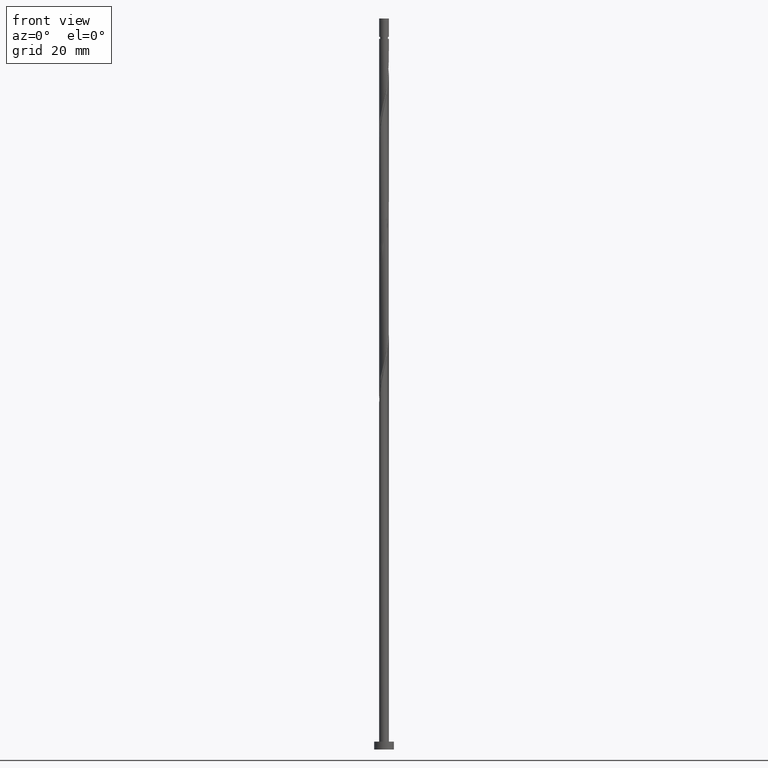
[diagram: clean part render]
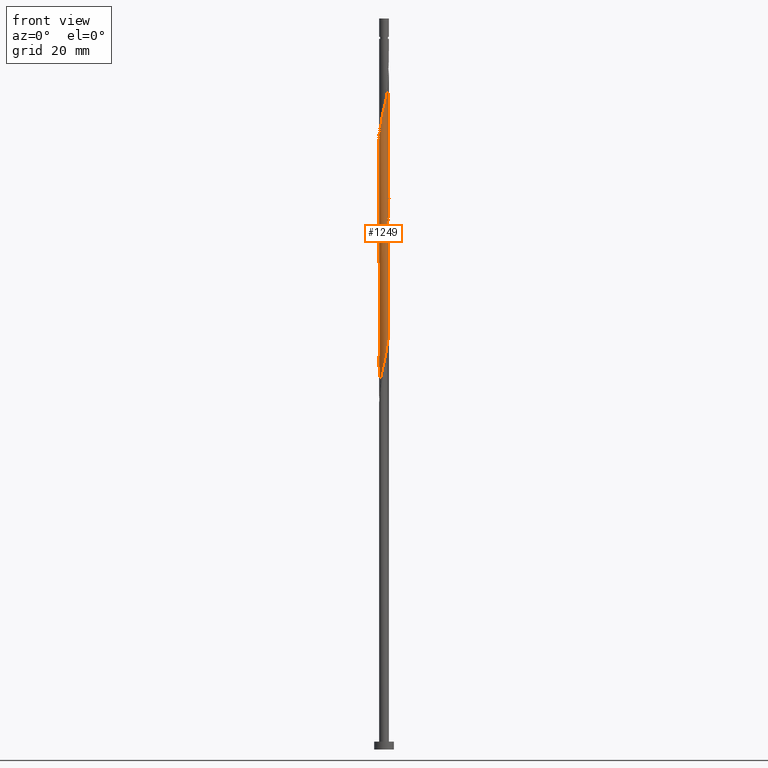
[diagram: same view with one face highlighted and labeled with its STEP entity id]
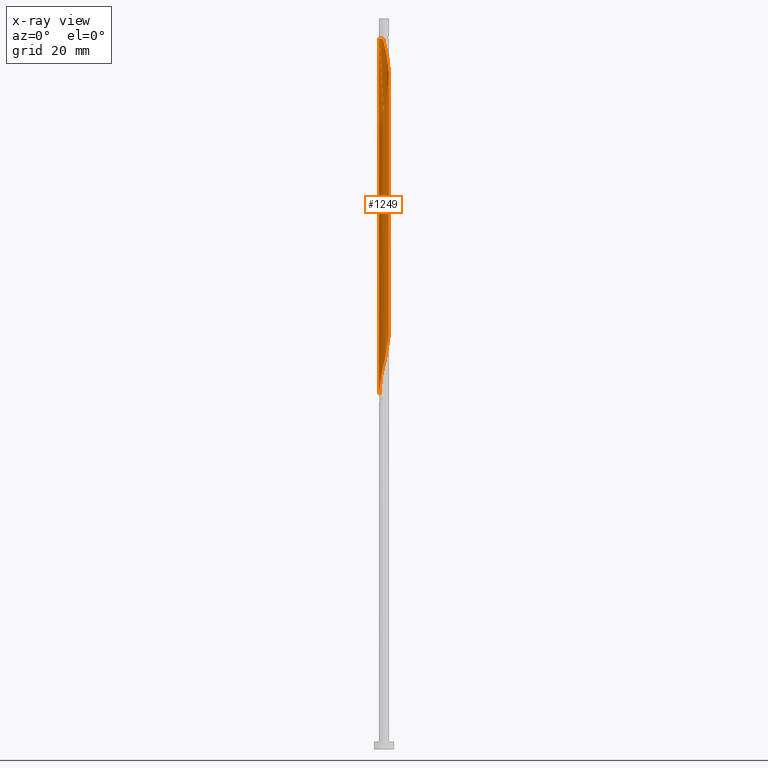
[diagram: x-ray of the same camera — body ghosted, the highlighted face saturated]
A machine part, front view. The second image highlights one B-rep face of the part: STEP entity #1249.
The next image is the same camera in x-ray: the body ghosted, the highlighted face saturated — about 0% of this face is hidden behind the body in this view.
In plain terms, the highlighted cylindrical surface (bore or boss wall) has radius 1.25 mm, axis along (-0, -0, -1).
Its self-contained STEP definition (entity closure, byte-faithful):
#1 = EDGE_LOOP ( 'NONE', ( #544, #595, #1333, #143, #1092, #1574, #1375, #1614 ) ) ;
#4 = CARTESIAN_POINT ( 'NONE',  ( 1.247639561794343654, 0.07678231466697274521, 140.5455219272187435 ) ) ;
#17 = CARTESIAN_POINT ( 'NONE',  ( 1.257748145290791930, -0.08747254973209654672, 106.5177441494410004 ) ) ;
#34 = CARTESIAN_POINT ( 'NONE',  ( 0.8279210992451773166, 0.9365076899976088054, 111.3788552605521005 ) ) ;
#76 = CARTESIAN_POINT ( 'NONE',  ( 0.5573243458342033163, 1.118878712613872395, 112.7677441494410004 ) ) ;
#83 = CARTESIAN_POINT ( 'NONE',  ( -0.9512146756431651973, -0.8275098094766791812, 127.3510774827743290 ) ) ;
#89 = CARTESIAN_POINT ( 'NONE',  ( -0.07678231466697330032, 1.247639561794343654, 115.5455219272187719 ) ) ;
#92 = CARTESIAN_POINT ( 'NONE',  ( 1.042096397946900677, -0.6903152159601428917, 168.3232997049965434 ) ) ;
#94 = CARTESIAN_POINT ( 'NONE',  ( 1.250000000000000000, 1.530808498934191571E-16, 186.0000000000000000 ) ) ;
#99 = CARTESIAN_POINT ( 'NONE',  ( -0.2410371790660428004, 1.237530978297895601, 116.2399663716631864 ) ) ;
#100 = CARTESIAN_POINT ( 'NONE',  ( 0.9512146756431651973, 0.8275098094766790702, 144.0177441494410004 ) ) ;
#103 = CARTESIAN_POINT ( 'NONE',  ( -1.118878712613874837, -0.5573243458342027612, 157.2121885938854575 ) ) ;
#105 = CARTESIAN_POINT ( 'NONE',  ( -1.192251854709207803, 0.4100211688212159755, 121.7955219272187435 ) ) ;
#106 = CARTESIAN_POINT ( 'NONE',  ( -0.3970789007548229388, 1.185254549274265434, 150.2677441494410004 ) ) ;
#108 = CARTESIAN_POINT ( 'NONE',  ( -1.045505570518540539, -0.7046275228471895469, 157.9066330383299146 ) ) ;
#113 = CARTESIAN_POINT ( 'NONE',  ( 0.08747254973209614426, 1.257748145290791930, 148.1844108161076292 ) ) ;
#116 = EDGE_CURVE ( 'NONE', #152, #1071, #195, .T. ) ;
#122 = DIRECTION ( 'NONE',  ( -0.000000000000000000, -0.000000000000000000, -1.000000000000000000 ) ) ;
#142 = CARTESIAN_POINT ( 'NONE',  ( 1.045505570518538541, -0.7046275228471894359, 103.7399663716632290 ) ) ;
#143 = ORIENTED_EDGE ( 'NONE', *, *, #401, .T. ) ;
#152 = VERTEX_POINT ( 'NONE', #313 ) ;
#158 = CARTESIAN_POINT ( 'NONE',  ( -0.9512146756431651973, -0.8275098094766791812, 94.01774414944098623 ) ) ;
#163 = VECTOR ( 'NONE', #122, 1000.000000000000000 ) ;
#189 = CARTESIAN_POINT ( 'NONE',  ( -1.247639561794343432, -0.07678231466697317542, 123.8788552605521147 ) ) ;
#195 = LINE ( 'NONE', #94, #505 ) ;
#210 = CARTESIAN_POINT ( 'NONE',  ( 0.8279210992451775386, -0.9365076899976109148, 166.9344108161076861 ) ) ;
#216 = CARTESIAN_POINT ( 'NONE',  ( -1.132978120250635490, -0.5531206224436024943, 125.9621885938854149 ) ) ;
#219 = CARTESIAN_POINT ( 'NONE',  ( 0.9365076899976112479, 0.8279210992451770945, 175.2677441494410004 ) ) ;
#221 = DIRECTION ( 'NONE',  ( -0.000000000000000000, -0.000000000000000000, -1.000000000000000000 ) ) ;
#226 = CARTESIAN_POINT ( 'NONE',  ( -1.224999999999999201, 0.2487468592766560738, 122.4899663716632290 ) ) ;
#229 = CARTESIAN_POINT ( 'NONE',  ( 0.4100211688212160310, -1.192251854709209802, 164.8510774827744001 ) ) ;
#231 = CARTESIAN_POINT ( 'NONE',  ( -0.4100211688212163086, -1.192251854709207803, 96.79552192721878612 ) ) ;
#232 = CARTESIAN_POINT ( 'NONE',  ( 0.4100211688212171413, 1.192251854709207137, 146.7955219272187435 ) ) ;
#234 = CARTESIAN_POINT ( 'NONE',  ( -1.225000000000001199, -0.2487468592766561293, 155.8232997049966002 ) ) ;
#238 = CARTESIAN_POINT ( 'NONE',  ( 1.250000000000000000, 1.039288018831575252E-15, 140.2201996935399677 ) ) ;
#264 = CARTESIAN_POINT ( 'NONE',  ( 0.9512146756431651973, 0.8275098094766790702, 110.6844108161076434 ) ) ;
#283 = EDGE_CURVE ( 'NONE', #681, #574, #617, .T. ) ;
#313 = CARTESIAN_POINT ( 'NONE',  ( 1.250000000000000000, 1.530808498934191571E-16, 180.8232997049965434 ) ) ;
#328 = CARTESIAN_POINT ( 'NONE',  ( 0.2410371790660420510, -1.237530978297895601, 132.9066330383298578 ) ) ;
#331 = CARTESIAN_POINT ( 'NONE',  ( 0.5573243458342024281, -1.118878712613875059, 165.5455219272188003 ) ) ;
#337 = CARTESIAN_POINT ( 'NONE',  ( 1.224999999999999201, -0.2487468592766562125, 139.1566330383298578 ) ) ;
#338 = CARTESIAN_POINT ( 'NONE',  ( 0.5573243458342033163, 1.118878712613872395, 146.1010774827743148 ) ) ;
#340 = CARTESIAN_POINT ( 'NONE',  ( -1.192251854709209802, -0.4100211688212160865, 156.5177441494409720 ) ) ;
#343 = CARTESIAN_POINT ( 'NONE',  ( -1.250000000000000000, 0.000000000000000000, 186.0000000000000000 ) ) ;
#345 = CARTESIAN_POINT ( 'NONE',  ( -1.185254549274265434, -0.3970789007548227167, 125.2677441494409720 ) ) ;
#350 = CARTESIAN_POINT ( 'NONE',  ( -0.07678231466697392482, -1.247639561794345431, 162.7677441494410289 ) ) ;
#352 = DIRECTION ( 'NONE',  ( -0.000000000000000000, -0.000000000000000000, -1.000000000000000000 ) ) ;
#358 = CARTESIAN_POINT ( 'NONE',  ( 0.07678231466697466034, 1.247639561794345431, 179.4344108161076576 ) ) ;
#359 = LINE ( 'NONE', #389, #163 ) ;
#362 =( BOUNDED_CURVE ( )  B_SPLINE_CURVE ( 2, ( #1379, #1618, #234, #340, #103, #108, #1631, #1353, #1267, #593, #364, #751, #350, #1623, #843, #229, #331, #1230, #210, #738, #92, #1612, #973, #487, #1097, #1498, #1250, #966, #1360, #1115, #219, #727, #601, #1108, #607, #982, #358, #388, #776 ),
 .UNSPECIFIED., .F., .T. ) 
 B_SPLINE_CURVE_WITH_KNOTS ( ( 3, 2, 2, 2, 2, 2, 2, 2, 2, 2, 2, 2, 2, 2, 2, 2, 2, 2, 2, 3 ),
 ( 0.5545317669814464612, 0.5625000000000000000, 0.5729166666666667407, 0.5833333333333332593, 0.5937500000000000000, 0.6041666666666667407, 0.6145833333333332593, 0.6250000000000000000, 0.6354166666666667407, 0.6458333333333332593, 0.6562500000000000000, 0.6666666666666667407, 0.6770833333333332593, 0.6875000000000001110, 0.6979166666666668517, 0.7083333333333333703, 0.7187500000000001110, 0.7291666666666668517, 0.7395833333333333703, 0.7500000000000001110 ),
 .UNSPECIFIED. ) 
 CURVE ( )  GEOMETRIC_REPRESENTATION_ITEM ( )  RATIONAL_B_SPLINE_CURVE ( ( 0.9062941362546669266, 0.9031415850403715639, 0.9090909090909468082, 0.9013135103398650649, 0.9090909090909468082, 0.9013135103398650649, 0.9090909090909468082, 0.9013135103398650649, 0.9090909090909468082, 0.9013135103398650649, 0.9090909090909468082, 0.9013135103398650649, 0.9090909090909468082, 0.9013135103398650649, 0.9090909090909468082, 0.9013135103398650649, 0.9090909090909468082, 0.9013135103398650649, 0.9090909090909468082, 0.9013135103398650649, 0.9090909090909468082, 0.9013135103398650649, 0.9090909090909468082, 0.9013135103398650649, 0.9090909090909468082, 0.9013135103398650649, 0.9090909090909468082, 0.9013135103398650649, 0.9090909090909468082, 0.9013135103398650649, 0.9090909090909468082, 0.9013135103398650649, 0.9090909090909468082, 0.9013135103398650649, 0.9090909090909468082, 0.9013135103398650649, 0.9090909090909468082, 0.9013135103398650649, 0.9090909090909468082 ) ) 
 REPRESENTATION_ITEM ( '' )  );
#364 = CARTESIAN_POINT ( 'NONE',  ( -0.3970789007548240490, -1.185254549274266545, 161.3788552605520863 ) ) ;
#388 = CARTESIAN_POINT ( 'NONE',  ( -0.08747254973209654672, 1.257748145290793929, 180.1288552605520863 ) ) ;
#389 = CARTESIAN_POINT ( 'NONE',  ( -1.250000000000000000, 0.000000000000000000, 186.0000000000000000 ) ) ;
#397 = CARTESIAN_POINT ( 'NONE',  ( 1.132978120250635712, 0.5531206224436020502, 109.2955219272187861 ) ) ;
#401 = EDGE_CURVE ( 'NONE', #1382, #885, #359, .T. ) ;
#407 = CARTESIAN_POINT ( 'NONE',  ( -1.192251854709207803, 0.4100211688212159755, 155.1288552605520579 ) ) ;
#410 = CARTESIAN_POINT ( 'NONE',  ( -0.7046275228471889918, -1.045505570518538763, 95.40663303832988618 ) ) ;
#417 = CARTESIAN_POINT ( 'NONE',  ( 0.8275098094766790702, -0.9512146756431651973, 102.3510774827743290 ) ) ;
#445 = CARTESIAN_POINT ( 'NONE',  ( -0.8279210992451773166, -0.9365076899976088054, 128.0455219272187435 ) ) ;
#456 = CARTESIAN_POINT ( 'NONE',  ( -0.5531206224436029384, 1.132978120250635490, 117.6288552605521147 ) ) ;
#457 = CARTESIAN_POINT ( 'NONE',  ( -0.2487468592766901021, 1.225000000000342038, 180.8232997049964865 ) ) ;
#467 = CARTESIAN_POINT ( 'NONE',  ( -1.250000000000001998, 6.056282699665983059E-16, 154.7597330497865471 ) ) ;
#474 = CARTESIAN_POINT ( 'NONE',  ( 0.8275098094766790702, -0.9512146756431651973, 135.6844108161076292 ) ) ;
#484 = CARTESIAN_POINT ( 'NONE',  ( 0.2487468592766563236, 1.224999999999999201, 114.1566330383298720 ) ) ;
#487 = CARTESIAN_POINT ( 'NONE',  ( 1.237530978297897155, -0.2410371790660440217, 170.4066330383299714 ) ) ;
#492 = CARTESIAN_POINT ( 'NONE',  ( 1.185254549274265878, 0.3970789007548219396, 141.9344108161076576 ) ) ;
#505 = VECTOR ( 'NONE', #221, 1000.000000000000000 ) ;
#516 = CARTESIAN_POINT ( 'NONE',  ( -1.042096397946899788, -0.6903152159601412263, 93.32329970499654337 ) ) ;
#532 = CARTESIAN_POINT ( 'NONE',  ( 0.9365076899976088054, -0.8279210992451773166, 103.0455219272187719 ) ) ;
#544 = ORIENTED_EDGE ( 'NONE', *, *, #1136, .F. ) ;
#562 = FACE_OUTER_BOUND ( 'NONE', #1, .T. ) ;
#574 = VERTEX_POINT ( 'NONE', #457 ) ;
#578 = CARTESIAN_POINT ( 'NONE',  ( -1.237530978297895601, -0.2410371790660424951, 124.5732997049965434 ) ) ;
#588 = CARTESIAN_POINT ( 'NONE',  ( 0.08747254973209614426, 1.257748145290791930, 114.8510774827743148 ) ) ;
#593 = CARTESIAN_POINT ( 'NONE',  ( -0.5531206224436042707, -1.132978120250636378, 160.6844108161076861 ) ) ;
#595 = ORIENTED_EDGE ( 'NONE', *, *, #283, .T. ) ;
#598 = CARTESIAN_POINT ( 'NONE',  ( -0.08747254973209647733, -1.257748145290791930, 131.5177441494410004 ) ) ;
#600 = EDGE_CURVE ( 'NONE', #1126, #1071, #605, .T. ) ;
#601 = CARTESIAN_POINT ( 'NONE',  ( 0.6903152159601424476, 1.042096397946901121, 176.6566330383299430 ) ) ;
#604 = CARTESIAN_POINT ( 'NONE',  ( 1.132978120250635712, 0.5531206224436020502, 142.6288552605520863 ) ) ;
#605 =( BOUNDED_CURVE ( )  B_SPLINE_CURVE ( 2, ( #1035, #1421, #1553, #407, #1325, #809, #613, #1370, #1378, #735, #106, #723, #1247, #113, #1505, #232, #338, #1238, #977, #100, #1495, #604, #492, #860, #4, #742, #238 ),
 .UNSPECIFIED., .F., .T. ) 
 B_SPLINE_CURVE_WITH_KNOTS ( ( 3, 2, 2, 2, 2, 2, 2, 2, 2, 2, 2, 2, 2, 3 ),
 ( 0.4295317669814464057, 0.4375000000000000000, 0.4479166666666666852, 0.4583333333333333148, 0.4687500000000000000, 0.4791666666666666852, 0.4895833333333333148, 0.5000000000000000000, 0.5104166666666666297, 0.5208333333333333703, 0.5312500000000000000, 0.5416666666666666297, 0.5520833333333333703, 0.5545317669814462391 ),
 .UNSPECIFIED. ) 
 CURVE ( )  GEOMETRIC_REPRESENTATION_ITEM ( )  RATIONAL_B_SPLINE_CURVE ( ( 0.9062941362546627078, 0.9031415850403670120, 0.9090909090909423673, 0.9013135103398606240, 0.9090909090909423673, 0.9013135103398606240, 0.9090909090909423673, 0.9013135103398606240, 0.9090909090909423673, 0.9013135103398606240, 0.9090909090909423673, 0.9013135103398606240, 0.9090909090909423673, 0.9013135103398606240, 0.9090909090909423673, 0.9013135103398606240, 0.9090909090909423673, 0.9013135103398606240, 0.9090909090909423673, 0.9013135103398606240, 0.9090909090909423673, 0.9013135103398606240, 0.9090909090909423673, 0.9013135103398606240, 0.9090909090909423673, 0.9072628343904360904, 0.9062941362546625967 ) ) 
 REPRESENTATION_ITEM ( '' )  );
#607 = CARTESIAN_POINT ( 'NONE',  ( 0.3970789007548241600, 1.185254549274266545, 178.0455219272187719 ) ) ;
#608 = DIRECTION ( 'NONE',  ( -1.000000000000000000, 0.000000000000000000, 0.000000000000000000 ) ) ;
#610 = CARTESIAN_POINT ( 'NONE',  ( 1.250000000000000000, 1.039288018831575252E-15, 140.2201996935399677 ) ) ;
#613 = CARTESIAN_POINT ( 'NONE',  ( -0.9365076899976091385, 0.8279210992451768725, 153.0455219272187435 ) ) ;
#617 = CIRCLE ( 'NONE', #872, 1.249999999999989786 ) ;
#649 = CARTESIAN_POINT ( 'NONE',  ( 0.6903152159601406712, -1.042096397946900455, 101.6566330383298862 ) ) ;
#655 = DIRECTION ( 'NONE',  ( -1.000000000000000000, 0.000000000000000000, 0.000000000000000000 ) ) ;
#670 = CARTESIAN_POINT ( 'NONE',  ( 0.2410371790660420510, -1.237530978297895601, 99.57329970499652916 ) ) ;
#681 = VERTEX_POINT ( 'NONE', #1352 ) ;
#696 = CARTESIAN_POINT ( 'NONE',  ( 1.192251854709207137, -0.4100211688212169192, 138.4621885938854291 ) ) ;
#713 = CARTESIAN_POINT ( 'NONE',  ( -0.3970789007548229388, 1.185254549274265434, 116.9344108161076292 ) ) ;
#721 = CARTESIAN_POINT ( 'NONE',  ( -1.045505570518538763, 0.7046275228471889918, 120.4066330383298862 ) ) ;
#723 = CARTESIAN_POINT ( 'NONE',  ( -0.2410371790660428004, 1.237530978297895601, 149.5732997049965718 ) ) ;
#727 = CARTESIAN_POINT ( 'NONE',  ( 0.8275098094766817347, 0.9512146756431651973, 175.9621885938854859 ) ) ;
#735 = CARTESIAN_POINT ( 'NONE',  ( -0.5531206224436029384, 1.132978120250635490, 150.9621885938854291 ) ) ;
#738 = CARTESIAN_POINT ( 'NONE',  ( 0.9512146756431653083, -0.8275098094766812906, 167.6288552605521147 ) ) ;
#741 = CARTESIAN_POINT ( 'NONE',  ( 0.5531206224436024943, -1.132978120250635490, 100.9621885938854007 ) ) ;
#742 = CARTESIAN_POINT ( 'NONE',  ( 1.250000000000000000, 0.03842743957209150685, 140.3833633815681026 ) ) ;
#751 = CARTESIAN_POINT ( 'NONE',  ( -0.2410371790660434665, -1.237530978297897599, 162.0732997049966002 ) ) ;
#765 = CARTESIAN_POINT ( 'NONE',  ( -1.247639561794343432, -0.07678231466697317542, 90.54552192721875770 ) ) ;
#776 = CARTESIAN_POINT ( 'NONE',  ( -0.2487468592766901021, 1.225000000000342038, 180.8232997049965149 ) ) ;
#797 = CARTESIAN_POINT ( 'NONE',  ( -1.250000000000000000, -1.353317492147590715E-15, 90.22019969353995350 ) ) ;
#809 = CARTESIAN_POINT ( 'NONE',  ( -1.045505570518538763, 0.7046275228471889918, 153.7399663716632006 ) ) ;
#840 = CARTESIAN_POINT ( 'NONE',  ( 0.07678231466697284235, -1.247639561794343654, 132.2121885938854291 ) ) ;
#843 = CARTESIAN_POINT ( 'NONE',  ( 0.2487468592766560183, -1.225000000000001199, 164.1566330383298862 ) ) ;
#847 = CARTESIAN_POINT ( 'NONE',  ( 1.250000000000000000, 1.039288018831575252E-15, 140.2201996935399677 ) ) ;
#853 = CARTESIAN_POINT ( 'NONE',  ( -1.042096397946899788, -0.6903152159601412263, 126.6566330383298862 ) ) ;
#860 = CARTESIAN_POINT ( 'NONE',  ( 1.237530978297895601, 0.2410371790660420510, 141.2399663716632290 ) ) ;
#872 = AXIS2_PLACEMENT_3D ( 'NONE', #1016, #1258, #608 ) ;
#885 = VERTEX_POINT ( 'NONE', #797 ) ;
#900 = CARTESIAN_POINT ( 'NONE',  ( -1.237530978297895601, -0.2410371790660424951, 91.23996637166320056 ) ) ;
#912 = CARTESIAN_POINT ( 'NONE',  ( -1.250000000000000222, -0.03842743957209011907, 90.38336338156811678 ) ) ;
#937 = DIRECTION ( 'NONE',  ( -0.000000000000000000, -0.000000000000000000, -1.000000000000000000 ) ) ;
#966 = CARTESIAN_POINT ( 'NONE',  ( 1.192251854709209802, 0.4100211688212160310, 173.1844108161076861 ) ) ;
#970 = CARTESIAN_POINT ( 'NONE',  ( 0.5531206224436024943, -1.132978120250635490, 134.2955219272187435 ) ) ;
#973 = CARTESIAN_POINT ( 'NONE',  ( 1.185254549274266545, -0.3970789007548241600, 169.7121885938854859 ) ) ;
#976 = CARTESIAN_POINT ( 'NONE',  ( -0.4100211688212163086, -1.192251854709207803, 130.1288552605521431 ) ) ;
#977 = CARTESIAN_POINT ( 'NONE',  ( 0.8279210992451773166, 0.9365076899976088054, 144.7121885938853723 ) ) ;
#982 = CARTESIAN_POINT ( 'NONE',  ( 0.2410371790660441604, 1.237530978297897155, 178.7399663716632574 ) ) ;
#1016 = CARTESIAN_POINT ( 'NONE',  ( 0.000000000000000000, 0.000000000000000000, 180.8232997049965434 ) ) ;
#1018 = CARTESIAN_POINT ( 'NONE',  ( 1.118878712613873061, -0.5573243458342033163, 104.4344108161076718 ) ) ;
#1029 = CARTESIAN_POINT ( 'NONE',  ( -1.132978120250635490, -0.5531206224436024943, 92.62885526055210050 ) ) ;
#1035 = CARTESIAN_POINT ( 'NONE',  ( -1.249999999999999778, -2.990756888723956966E-17, 156.8868663602065965 ) ) ;
#1038 = CARTESIAN_POINT ( 'NONE',  ( -0.08747254973209647733, -1.257748145290791930, 98.18441081610764343 ) ) ;
#1043 = CARTESIAN_POINT ( 'NONE',  ( 0.07678231466697284235, -1.247639561794343654, 98.87885526055210050 ) ) ;
#1065 = CYLINDRICAL_SURFACE ( 'NONE', #1552, 1.250000000000000000 ) ;
#1071 = VERTEX_POINT ( 'NONE', #610 ) ;
#1074 = CARTESIAN_POINT ( 'NONE',  ( 1.118878712613873061, -0.5573243458342033163, 137.7677441494409720 ) ) ;
#1085 = CARTESIAN_POINT ( 'NONE',  ( -1.257748145290791930, 0.08747254973209639406, 123.1844108161076576 ) ) ;
#1092 = ORIENTED_EDGE ( 'NONE', *, *, #1483, .F. ) ;
#1094 = CARTESIAN_POINT ( 'NONE',  ( -0.8275098094766795143, 0.9512146756431648642, 119.0177441494409862 ) ) ;
#1097 = CARTESIAN_POINT ( 'NONE',  ( 1.247639561794345209, -0.07678231466697457708, 171.1010774827744001 ) ) ;
#1108 = CARTESIAN_POINT ( 'NONE',  ( 0.5531206224436043817, 1.132978120250635934, 177.3510774827743148 ) ) ;
#1113 = CARTESIAN_POINT ( 'NONE',  ( 0.9365076899976088054, -0.8279210992451773166, 136.3788552605520863 ) ) ;
#1115 = CARTESIAN_POINT ( 'NONE',  ( 1.045505570518540539, 0.7046275228471892138, 174.5732997049965149 ) ) ;
#1126 = VERTEX_POINT ( 'NONE', #1615 ) ;
#1136 = EDGE_CURVE ( 'NONE', #681, #1126, #1478, .T. ) ;
#1152 = CARTESIAN_POINT ( 'NONE',  ( 1.185254549274265878, 0.3970789007548219396, 108.6010774827743290 ) ) ;
#1160 = CARTESIAN_POINT ( 'NONE',  ( -0.5573243458342028722, -1.118878712613873283, 96.10107748277431483 ) ) ;
#1174 = CARTESIAN_POINT ( 'NONE',  ( 1.237530978297895601, 0.2410371790660420510, 107.9066330383298720 ) ) ;
#1209 = CARTESIAN_POINT ( 'NONE',  ( -0.6903152159601412263, 1.042096397946899788, 118.3232997049965434 ) ) ;
#1216 = CARTESIAN_POINT ( 'NONE',  ( 0.3970789007548225502, -1.185254549274265434, 133.6010774827743433 ) ) ;
#1228 = CARTESIAN_POINT ( 'NONE',  ( -1.118878712613873283, 0.5573243458342028722, 121.1010774827743006 ) ) ;
#1230 = CARTESIAN_POINT ( 'NONE',  ( 0.7046275228471892138, -1.045505570518540539, 166.2399663716632858 ) ) ;
#1238 = CARTESIAN_POINT ( 'NONE',  ( 0.7046275228471894359, 1.045505570518538541, 145.4066330383299146 ) ) ;
#1246 = CARTESIAN_POINT ( 'NONE',  ( 1.045505570518538541, -0.7046275228471894359, 137.0732997049965149 ) ) ;
#1247 = CARTESIAN_POINT ( 'NONE',  ( -0.07678231466697330032, 1.247639561794343654, 148.8788552605521147 ) ) ;
#1249 = ADVANCED_FACE ( 'NONE', ( #562 ), #1065, .T. ) ;
#1250 = CARTESIAN_POINT ( 'NONE',  ( 1.225000000000001199, 0.2487468592766559627, 172.4899663716632574 ) ) ;
#1258 = DIRECTION ( 'NONE',  ( -0.000000000000000000, -0.000000000000000000, -1.000000000000000000 ) ) ;
#1267 = CARTESIAN_POINT ( 'NONE',  ( -0.6903152159601423365, -1.042096397946901121, 159.9899663716632006 ) ) ;
#1285 = CARTESIAN_POINT ( 'NONE',  ( -0.2487468592766561570, -1.224999999999999201, 97.48996637166321477 ) ) ;
#1294 = CARTESIAN_POINT ( 'NONE',  ( 1.224999999999999201, -0.2487468592766562125, 105.8232997049965434 ) ) ;
#1301 = CARTESIAN_POINT ( 'NONE',  ( -0.8279210992451773166, -0.9365076899976088054, 94.71218859388542910 ) ) ;
#1325 = CARTESIAN_POINT ( 'NONE',  ( -1.118878712613873283, 0.5573243458342028722, 154.4344108161076292 ) ) ;
#1333 = ORIENTED_EDGE ( 'NONE', *, *, #1586, .F. ) ;
#1341 = CARTESIAN_POINT ( 'NONE',  ( -0.5573243458342028722, -1.118878712613873283, 129.4344108161076576 ) ) ;
#1351 = CARTESIAN_POINT ( 'NONE',  ( 0.6903152159601406712, -1.042096397946900455, 134.9899663716632290 ) ) ;
#1352 = CARTESIAN_POINT ( 'NONE',  ( -1.249999999999989786, 0.000000000000000000, 180.8232997049965434 ) ) ;
#1353 = CARTESIAN_POINT ( 'NONE',  ( -0.8275098094766812906, -0.9512146756431653083, 159.2955219272188572 ) ) ;
#1360 = CARTESIAN_POINT ( 'NONE',  ( 1.118878712613875059, 0.5573243458342024281, 173.8788552605521147 ) ) ;
#1370 = CARTESIAN_POINT ( 'NONE',  ( -0.8275098094766795143, 0.9512146756431648642, 152.3510774827742864 ) ) ;
#1375 = ORIENTED_EDGE ( 'NONE', *, *, #116, .T. ) ;
#1377 = CARTESIAN_POINT ( 'NONE',  ( 0.3970789007548225502, -1.185254549274265434, 100.2677441494409862 ) ) ;
#1378 = CARTESIAN_POINT ( 'NONE',  ( -0.6903152159601412263, 1.042096397946899788, 151.6566330383298862 ) ) ;
#1379 = CARTESIAN_POINT ( 'NONE',  ( -1.250000000000002220, 6.056282699665982073E-16, 154.7597330497865471 ) ) ;
#1382 = VERTEX_POINT ( 'NONE', #467 ) ;
#1405 = CARTESIAN_POINT ( 'NONE',  ( 1.247639561794343654, 0.07678231466697274521, 107.2121885938854291 ) ) ;
#1413 = CARTESIAN_POINT ( 'NONE',  ( -1.250000000000000000, -1.353317492147590518E-15, 90.22019969353995350 ) ) ;
#1420 = VECTOR ( 'NONE', #352, 1000.000000000000000 ) ;
#1421 = CARTESIAN_POINT ( 'NONE',  ( -1.249999999999999334, 0.1256297269074047596, 156.3534399910173249 ) ) ;
#1474 = CARTESIAN_POINT ( 'NONE',  ( 1.250000000000000222, -0.1256297269074016509, 139.6867733243506677 ) ) ;
#1478 = LINE ( 'NONE', #343, #1420 ) ;
#1483 = EDGE_CURVE ( 'NONE', #1071, #885, #1568, .T. ) ;
#1487 = CARTESIAN_POINT ( 'NONE',  ( -0.7046275228471889918, -1.045505570518538763, 128.7399663716631721 ) ) ;
#1495 = CARTESIAN_POINT ( 'NONE',  ( 1.042096397946900233, 0.6903152159601410043, 143.3232997049965718 ) ) ;
#1498 = CARTESIAN_POINT ( 'NONE',  ( 1.257748145290793929, 0.08747254973209489526, 171.7955219272188003 ) ) ;
#1505 = CARTESIAN_POINT ( 'NONE',  ( 0.2487468592766563236, 1.224999999999999201, 147.4899663716632290 ) ) ;
#1536 = CARTESIAN_POINT ( 'NONE',  ( -1.185254549274265434, -0.3970789007548227167, 91.93441081610765764 ) ) ;
#1552 = AXIS2_PLACEMENT_3D ( 'NONE', #1584, #937, #655 ) ;
#1553 = CARTESIAN_POINT ( 'NONE',  ( -1.224999999999999201, 0.2487468592766560738, 155.8232997049965718 ) ) ;
#1557 = CARTESIAN_POINT ( 'NONE',  ( 1.192251854709207137, -0.4100211688212169192, 105.1288552605521005 ) ) ;
#1563 = CARTESIAN_POINT ( 'NONE',  ( 1.042096397946900233, 0.6903152159601410043, 109.9899663716632006 ) ) ;
#1568 =( BOUNDED_CURVE ( )  B_SPLINE_CURVE ( 2, ( #847, #1474, #337, #696, #1074, #1246, #1113, #474, #1351, #970, #1216, #328, #840, #598, #1587, #976, #1341, #1487, #445, #83, #853, #216, #345, #578, #189, #1085, #226, #105, #1228, #721, #1596, #1094, #1209, #456, #713, #99, #89, #588, #484, #1621, #76, #1607, #34, #264, #1563, #397, #1152, #1174, #1405, #17, #1294, #1557, #1018, #142, #532, #417, #649, #741, #1377, #670, #1043, #1038, #1285, #231, #1160, #410, #1301, #158, #516, #1029, #1536, #900, #765, #912, #1413 ),
 .UNSPECIFIED., .F., .T. ) 
 B_SPLINE_CURVE_WITH_KNOTS ( ( 3, 2, 2, 2, 2, 2, 2, 2, 2, 2, 2, 2, 2, 2, 2, 2, 2, 2, 2, 2, 2, 2, 2, 2, 2, 2, 2, 2, 2, 2, 2, 2, 2, 2, 2, 2, 2, 3 ),
 ( 0.5545317669814462391, 0.5625000000000000000, 0.5729166666666666297, 0.5833333333333333703, 0.5937500000000000000, 0.6041666666666666297, 0.6145833333333333703, 0.6250000000000000000, 0.6354166666666666297, 0.6458333333333333703, 0.6562500000000000000, 0.6666666666666666297, 0.6770833333333333703, 0.6875000000000000000, 0.6979166666666666297, 0.7083333333333333703, 0.7187500000000000000, 0.7291666666666666297, 0.7395833333333333703, 0.7500000000000000000, 0.7604166666666666297, 0.7708333333333333703, 0.7812500000000000000, 0.7916666666666666297, 0.8020833333333333703, 0.8125000000000000000, 0.8229166666666666297, 0.8333333333333333703, 0.8437500000000000000, 0.8541666666666666297, 0.8645833333333333703, 0.8750000000000000000, 0.8854166666666666297, 0.8958333333333333703, 0.9062500000000000000, 0.9166666666666666297, 0.9270833333333333703, 0.9295317669814463502 ),
 .UNSPECIFIED. ) 
 CURVE ( )  GEOMETRIC_REPRESENTATION_ITEM ( )  RATIONAL_B_SPLINE_CURVE ( ( 0.9062941362546625967, 0.9031415850403667900, 0.9090909090909423673, 0.9013135103398606240, 0.9090909090909423673, 0.9013135103398606240, 0.9090909090909423673, 0.9013135103398606240, 0.9090909090909423673, 0.9013135103398606240, 0.9090909090909423673, 0.9013135103398606240, 0.9090909090909423673, 0.9013135103398606240, 0.9090909090909423673, 0.9013135103398606240, 0.9090909090909423673, 0.9013135103398606240, 0.9090909090909423673, 0.9013135103398606240, 0.9090909090909423673, 0.9013135103398606240, 0.9090909090909423673, 0.9013135103398606240, 0.9090909090909423673, 0.9013135103398606240, 0.9090909090909423673, 0.9013135103398606240, 0.9090909090909423673, 0.9013135103398606240, 0.9090909090909423673, 0.9013135103398606240, 0.9090909090909423673, 0.9013135103398606240, 0.9090909090909423673, 0.9013135103398606240, 0.9090909090909423673, 0.9013135103398606240, 0.9090909090909423673, 0.9013135103398606240, 0.9090909090909423673, 0.9013135103398606240, 0.9090909090909423673, 0.9013135103398606240, 0.9090909090909423673, 0.9013135103398606240, 0.9090909090909423673, 0.9013135103398606240, 0.9090909090909423673, 0.9013135103398606240, 0.9090909090909423673, 0.9013135103398606240, 0.9090909090909423673, 0.9013135103398606240, 0.9090909090909423673, 0.9013135103398606240, 0.9090909090909423673, 0.9013135103398606240, 0.9090909090909423673, 0.9013135103398606240, 0.9090909090909423673, 0.9013135103398606240, 0.9090909090909423673, 0.9013135103398606240, 0.9090909090909423673, 0.9013135103398606240, 0.9090909090909423673, 0.9013135103398606240, 0.9090909090909423673, 0.9013135103398606240, 0.9090909090909423673, 0.9013135103398606240, 0.9090909090909423673, 0.9072628343904359793, 0.9062941362546624857 ) ) 
 REPRESENTATION_ITEM ( '' )  );
#1574 = ORIENTED_EDGE ( 'NONE', *, *, #116, .F. ) ;
#1584 = CARTESIAN_POINT ( 'NONE',  ( 0.000000000000000000, 0.000000000000000000, 186.0000000000000000 ) ) ;
#1586 = EDGE_CURVE ( 'NONE', #1382, #574, #362, .T. ) ;
#1587 = CARTESIAN_POINT ( 'NONE',  ( -0.2487468592766561570, -1.224999999999999201, 130.8232997049965718 ) ) ;
#1596 = CARTESIAN_POINT ( 'NONE',  ( -0.9365076899976091385, 0.8279210992451768725, 119.7121885938854575 ) ) ;
#1607 = CARTESIAN_POINT ( 'NONE',  ( 0.7046275228471894359, 1.045505570518538541, 112.0732997049965292 ) ) ;
#1612 = CARTESIAN_POINT ( 'NONE',  ( 1.132978120250635934, -0.5531206224436042707, 169.0177441494409436 ) ) ;
#1614 = ORIENTED_EDGE ( 'NONE', *, *, #600, .F. ) ;
#1615 = CARTESIAN_POINT ( 'NONE',  ( -1.249999999999999778, -2.990756888723956966E-17, 156.8868663602066249 ) ) ;
#1618 = CARTESIAN_POINT ( 'NONE',  ( -1.250000000000000888, -0.1256297269074058975, 155.2931594189758187 ) ) ;
#1621 = CARTESIAN_POINT ( 'NONE',  ( 0.4100211688212171413, 1.192251854709207137, 113.4621885938854291 ) ) ;
#1623 = CARTESIAN_POINT ( 'NONE',  ( 0.08747254973209560303, -1.257748145290793929, 163.4621885938854291 ) ) ;
#1631 = CARTESIAN_POINT ( 'NONE',  ( -0.9365076899976109148, -0.8279210992451775386, 158.6010774827742864 ) ) ;